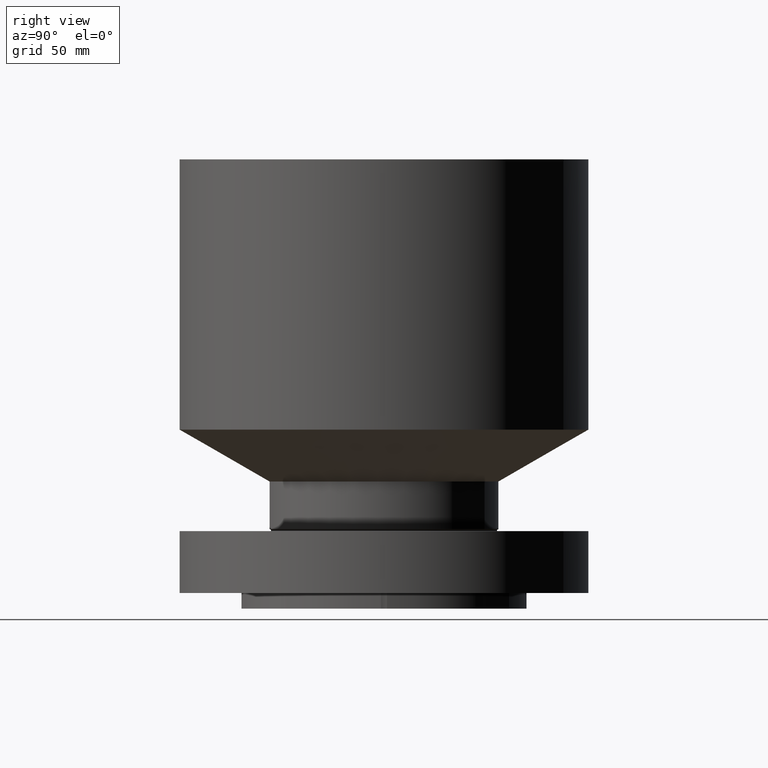
[diagram: clean part render]
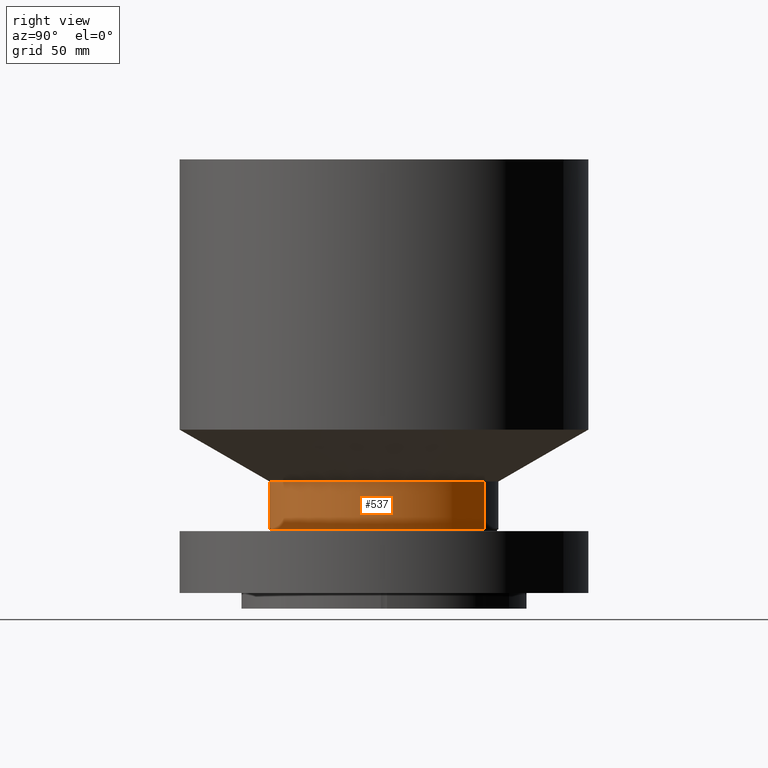
[diagram: same view with one face highlighted and labeled with its STEP entity id]
A machine part, right view. The second image highlights one B-rep face of the part: STEP entity #537.
In plain terms, the highlighted cylindrical surface (partial cylindrical patch) has radius 58.674 mm, axis along (0, 0, -1).
Its self-contained STEP definition (entity closure, byte-faithful):
#478=AXIS2_PLACEMENT_3D('Circle Axis2P3D',#476,#477,$) ;
#510=AXIS2_PLACEMENT_3D('Cylinder Axis2P3D',#507,#508,#509) ;
#521=AXIS2_PLACEMENT_3D('Circle Axis2P3D',#519,#520,$) ;
#473=CARTESIAN_POINT('Vertex',(1.10747299418,2.02721571797,1.29098076212)) ;
#476=CARTESIAN_POINT('Axis2P3D Location',(0.,0.,1.29098076212)) ;
#480=CARTESIAN_POINT('Vertex',(-1.10747299418,-2.02721571797,1.29098076212)) ;
#507=CARTESIAN_POINT('Axis2P3D Location',(0.,0.,4.21850000002)) ;
#512=CARTESIAN_POINT('Line Origine',(1.10747299418,2.02721571797,1.77049038106)) ;
#516=CARTESIAN_POINT('Vertex',(1.10747299418,2.02721571797,2.25000000001)) ;
#519=CARTESIAN_POINT('Axis2P3D Location',(0.,0.,2.25000000001)) ;
#523=CARTESIAN_POINT('Vertex',(-1.10747299418,-2.02721571797,2.25000000001)) ;
#526=CARTESIAN_POINT('Line Origine',(-1.10747299418,-2.02721571797,1.77049038106)) ;
#477=DIRECTION('Axis2P3D Direction',(-0.,0.,0.0393700787402)) ;
#508=DIRECTION('Axis2P3D Direction',(0.,0.,-0.0393700787402)) ;
#509=DIRECTION('Axis2P3D XDirection',(-0.0188750212049,-0.0345504945626,0.)) ;
#513=DIRECTION('Vector Direction',(0.,0.,-0.0393700787402)) ;
#520=DIRECTION('Axis2P3D Direction',(0.,0.,-0.0393700787402)) ;
#527=DIRECTION('Vector Direction',(0.,0.,-0.0393700787402)) ;
#514=VECTOR('Line Direction',#513,0.0393700787402) ;
#528=VECTOR('Line Direction',#527,0.0393700787402) ;
#532=ORIENTED_EDGE('',*,*,#482,.F.) ;
#533=ORIENTED_EDGE('',*,*,#518,.T.) ;
#534=ORIENTED_EDGE('',*,*,#525,.T.) ;
#535=ORIENTED_EDGE('',*,*,#530,.F.) ;
#537=ADVANCED_FACE('PartBody',(#536),#511,.T.) ;
#479=CIRCLE('generated circle',#478,2.31000000001) ;
#522=CIRCLE('generated circle',#521,2.31000000001) ;
#511=CYLINDRICAL_SURFACE('generated cylinder',#510,2.31000000001) ;
#482=EDGE_CURVE('',#474,#481,#479,.F.) ;
#518=EDGE_CURVE('',#474,#517,#515,.F.) ;
#525=EDGE_CURVE('',#517,#524,#522,.T.) ;
#530=EDGE_CURVE('',#481,#524,#529,.F.) ;
#531=EDGE_LOOP('',(#532,#533,#534,#535)) ;
#536=FACE_OUTER_BOUND('',#531,.T.) ;
#515=LINE('Line',#512,#514) ;
#529=LINE('Line',#526,#528) ;
#474=VERTEX_POINT('',#473) ;
#481=VERTEX_POINT('',#480) ;
#517=VERTEX_POINT('',#516) ;
#524=VERTEX_POINT('',#523) ;